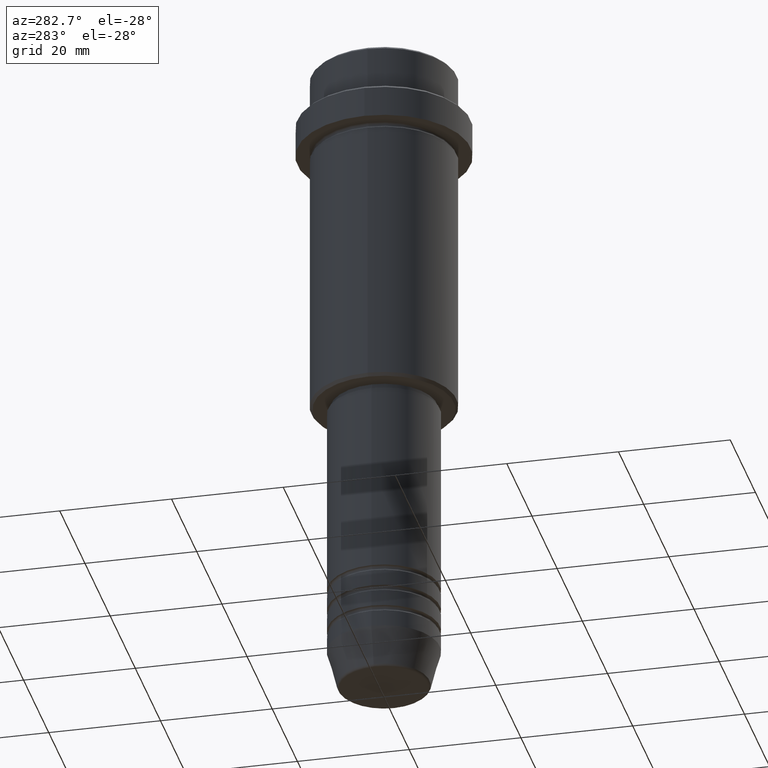
[diagram: clean part render]
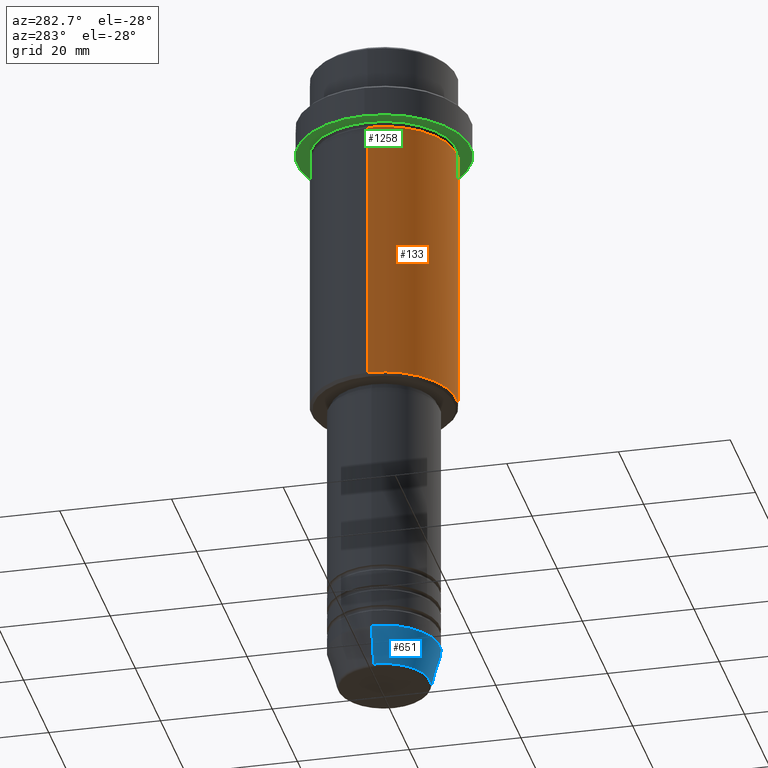
[diagram: same view with three faces highlighted in distinct colors, each labeled with its STEP entity id]
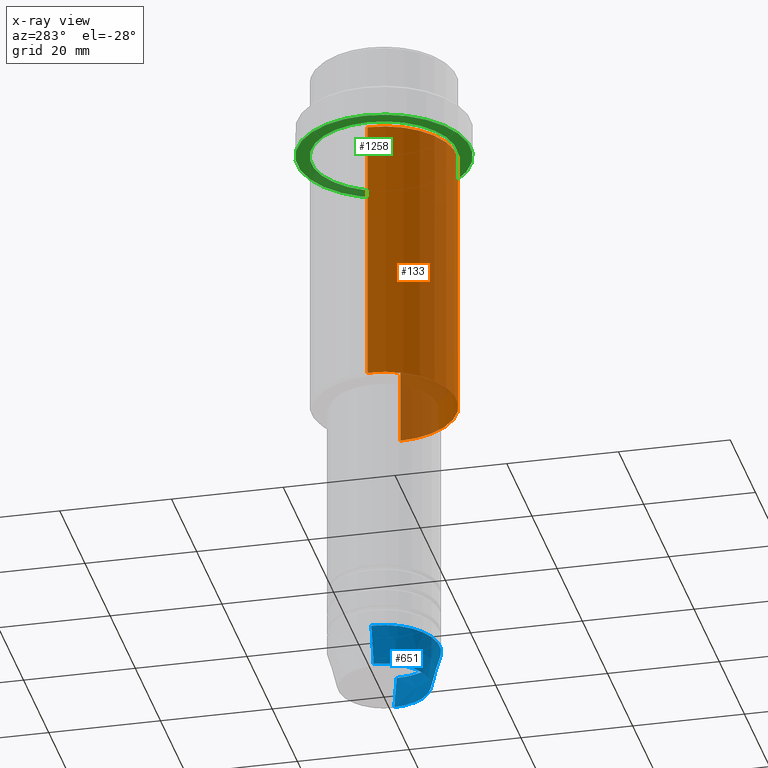
[diagram: x-ray of the same camera — body ghosted, the three highlighted faces saturated]
A machine part, auxiliary view with three faces highlighted in distinct colors.
The next image is the same camera in x-ray (body ghosted, the three faces saturated) — at least one of them is partly hidden behind the body in this view.
Their STEP definitions:

[orange] entity #133 — the highlighted cylindrical surface (partial cylindrical patch) has radius 13 mm, axis along (-0, -0, 1).
#79 = ORIENTED_EDGE ( 'NONE', *, *, #1048, .T. ) ;
#109 = DIRECTION ( 'NONE',  ( -0.000000000000000000, -0.000000000000000000, 1.000000000000000000 ) ) ;
#133 = ADVANCED_FACE ( 'NONE', ( #587 ), #483, .T. ) ;
#136 = CARTESIAN_POINT ( 'NONE',  ( -13.00000000000000000, 1.592040838891559095E-15, -64.50000000000001421 ) ) ;
#141 = ORIENTED_EDGE ( 'NONE', *, *, #871, .T. ) ;
#254 = VECTOR ( 'NONE', #1150, 1000.000000000000000 ) ;
#352 = ORIENTED_EDGE ( 'NONE', *, *, #1129, .F. ) ;
#401 = CARTESIAN_POINT ( 'NONE',  ( -13.00000000000000000, 1.592040838891559095E-15, -16.00000000000000000 ) ) ;
#483 = CYLINDRICAL_SURFACE ( 'NONE', #792, 13.00000000000000000 ) ;
#499 = VERTEX_POINT ( 'NONE', #401 ) ;
#500 = DIRECTION ( 'NONE',  ( -1.000000000000000000, 0.000000000000000000, 0.000000000000000000 ) ) ;
#569 = AXIS2_PLACEMENT_3D ( 'NONE', #1261, #712, #500 ) ;
#570 = LINE ( 'NONE', #782, #679 ) ;
#587 = FACE_OUTER_BOUND ( 'NONE', #1373, .T. ) ;
#598 = CARTESIAN_POINT ( 'NONE',  ( -13.00000000000000000, 1.592040838891559095E-15, 0.000000000000000000 ) ) ;
#649 = DIRECTION ( 'NONE',  ( 1.000000000000000000, 0.000000000000000000, 0.000000000000000000 ) ) ;
#663 = DIRECTION ( 'NONE',  ( 1.000000000000000000, 0.000000000000000000, 0.000000000000000000 ) ) ;
#679 = VECTOR ( 'NONE', #685, 1000.000000000000000 ) ;
#685 = DIRECTION ( 'NONE',  ( -0.000000000000000000, -0.000000000000000000, 1.000000000000000000 ) ) ;
#712 = DIRECTION ( 'NONE',  ( -0.000000000000000000, -0.000000000000000000, 1.000000000000000000 ) ) ;
#782 = CARTESIAN_POINT ( 'NONE',  ( 13.00000000000000000, 0.000000000000000000, 0.000000000000000000 ) ) ;
#792 = AXIS2_PLACEMENT_3D ( 'NONE', #1019, #1361, #663 ) ;
#798 = AXIS2_PLACEMENT_3D ( 'NONE', #1175, #109, #649 ) ;
#848 = VERTEX_POINT ( 'NONE', #136 ) ;
#871 = EDGE_CURVE ( 'NONE', #1286, #1023, #570, .T. ) ;
#950 = CIRCLE ( 'NONE', #569, 13.00000000000000000 ) ;
#1019 = CARTESIAN_POINT ( 'NONE',  ( 0.000000000000000000, 0.000000000000000000, 0.000000000000000000 ) ) ;
#1021 = CIRCLE ( 'NONE', #798, 13.00000000000000000 ) ;
#1023 = VERTEX_POINT ( 'NONE', #1371 ) ;
#1048 = EDGE_CURVE ( 'NONE', #848, #1286, #950, .T. ) ;
#1129 = EDGE_CURVE ( 'NONE', #499, #1023, #1021, .T. ) ;
#1134 = LINE ( 'NONE', #598, #254 ) ;
#1150 = DIRECTION ( 'NONE',  ( -0.000000000000000000, -0.000000000000000000, 1.000000000000000000 ) ) ;
#1175 = CARTESIAN_POINT ( 'NONE',  ( 0.000000000000000000, 0.000000000000000000, -16.00000000000000000 ) ) ;
#1195 = ORIENTED_EDGE ( 'NONE', *, *, #1379, .F. ) ;
#1211 = CARTESIAN_POINT ( 'NONE',  ( 13.00000000000000000, 0.000000000000000000, -64.50000000000001421 ) ) ;
#1261 = CARTESIAN_POINT ( 'NONE',  ( 0.000000000000000000, 0.000000000000000000, -64.50000000000001421 ) ) ;
#1286 = VERTEX_POINT ( 'NONE', #1211 ) ;
#1361 = DIRECTION ( 'NONE',  ( -0.000000000000000000, -0.000000000000000000, 1.000000000000000000 ) ) ;
#1371 = CARTESIAN_POINT ( 'NONE',  ( 13.00000000000000000, 0.000000000000000000, -16.00000000000000000 ) ) ;
#1373 = EDGE_LOOP ( 'NONE', ( #1195, #79, #141, #352 ) ) ;
#1379 = EDGE_CURVE ( 'NONE', #848, #499, #1134, .T. ) ;

[blue] entity #651 — the highlighted conical surface has half-angle 15 deg.
#31 = LINE ( 'NONE', #125, #544 ) ;
#38 = DIRECTION ( 'NONE',  ( 1.000000000000000000, 0.000000000000000000, 0.000000000000000000 ) ) ;
#74 = EDGE_CURVE ( 'NONE', #648, #214, #290, .T. ) ;
#125 = CARTESIAN_POINT ( 'NONE',  ( 10.00000000000000000, 0.000000000000000000, -113.0000000000000000 ) ) ;
#165 = EDGE_CURVE ( 'NONE', #787, #648, #962, .T. ) ;
#201 = AXIS2_PLACEMENT_3D ( 'NONE', #435, #1315, #978 ) ;
#214 = VERTEX_POINT ( 'NONE', #973 ) ;
#290 = CIRCLE ( 'NONE', #1085, 10.00000000000000000 ) ;
#313 = CARTESIAN_POINT ( 'NONE',  ( 8.223655072137194821, 0.000000000000000000, -119.6294095225512564 ) ) ;
#404 = DIRECTION ( 'NONE',  ( -0.000000000000000000, -0.000000000000000000, 1.000000000000000000 ) ) ;
#411 = EDGE_CURVE ( 'NONE', #787, #666, #1149, .T. ) ;
#423 = CARTESIAN_POINT ( 'NONE',  ( -10.00000000000000000, 1.224646799147353256E-15, -113.0000000000000000 ) ) ;
#435 = CARTESIAN_POINT ( 'NONE',  ( 0.000000000000000000, 0.000000000000000000, -113.0000000000000000 ) ) ;
#442 = CARTESIAN_POINT ( 'NONE',  ( -10.00000000000000000, 1.224646799147353256E-15, -113.0000000000000000 ) ) ;
#457 = DIRECTION ( 'NONE',  ( 1.000000000000000000, 0.000000000000000000, 0.000000000000000000 ) ) ;
#544 = VECTOR ( 'NONE', #1234, 1000.000000000000000 ) ;
#591 = CARTESIAN_POINT ( 'NONE',  ( -8.223655072137194821, 1.115877042642912251E-15, -119.6294095225512564 ) ) ;
#632 = CONICAL_SURFACE ( 'NONE', #201, 10.00000000000000000, 0.2617993877991500740 ) ;
#648 = VERTEX_POINT ( 'NONE', #423 ) ;
#651 = ADVANCED_FACE ( 'NONE', ( #740 ), #632, .T. ) ;
#666 = VERTEX_POINT ( 'NONE', #313 ) ;
#716 = VECTOR ( 'NONE', #1405, 1000.000000000000000 ) ;
#740 = FACE_OUTER_BOUND ( 'NONE', #774, .T. ) ;
#742 = ORIENTED_EDGE ( 'NONE', *, *, #1264, .T. ) ;
#774 = EDGE_LOOP ( 'NONE', ( #1401, #987, #742, #946 ) ) ;
#787 = VERTEX_POINT ( 'NONE', #591 ) ;
#946 = ORIENTED_EDGE ( 'NONE', *, *, #74, .F. ) ;
#962 = LINE ( 'NONE', #442, #716 ) ;
#973 = CARTESIAN_POINT ( 'NONE',  ( 10.00000000000000000, 0.000000000000000000, -113.0000000000000000 ) ) ;
#978 = DIRECTION ( 'NONE',  ( 1.000000000000000000, 0.000000000000000000, 0.000000000000000000 ) ) ;
#987 = ORIENTED_EDGE ( 'NONE', *, *, #411, .T. ) ;
#993 = CARTESIAN_POINT ( 'NONE',  ( 0.000000000000000000, 0.000000000000000000, -119.6294095225512564 ) ) ;
#1085 = AXIS2_PLACEMENT_3D ( 'NONE', #1242, #404, #38 ) ;
#1109 = AXIS2_PLACEMENT_3D ( 'NONE', #993, #1239, #457 ) ;
#1149 = CIRCLE ( 'NONE', #1109, 8.223655072137194821 ) ;
#1234 = DIRECTION ( 'NONE',  ( 0.2588190451025213501, 0.000000000000000000, 0.9659258262890680902 ) ) ;
#1239 = DIRECTION ( 'NONE',  ( -0.000000000000000000, -0.000000000000000000, 1.000000000000000000 ) ) ;
#1242 = CARTESIAN_POINT ( 'NONE',  ( 0.000000000000000000, 0.000000000000000000, -113.0000000000000000 ) ) ;
#1264 = EDGE_CURVE ( 'NONE', #666, #214, #31, .T. ) ;
#1315 = DIRECTION ( 'NONE',  ( -0.000000000000000000, -0.000000000000000000, 1.000000000000000000 ) ) ;
#1401 = ORIENTED_EDGE ( 'NONE', *, *, #165, .F. ) ;
#1405 = DIRECTION ( 'NONE',  ( -0.2588190451025213501, 3.169619151431772337E-17, 0.9659258262890680902 ) ) ;

[green] entity #1258 — the highlighted planar face has unit normal (0, 0, -1).
#85 = EDGE_LOOP ( 'NONE', ( #862, #1210 ) ) ;
#113 = CARTESIAN_POINT ( 'NONE',  ( 12.99999999999999645, 1.592040838891558701E-15, -15.00000000000000000 ) ) ;
#135 = CARTESIAN_POINT ( 'NONE',  ( 0.000000000000000000, 15.50000000000000000, -15.00000000000000000 ) ) ;
#140 = EDGE_LOOP ( 'NONE', ( #737, #1295 ) ) ;
#181 = CARTESIAN_POINT ( 'NONE',  ( -12.99999999999999645, 0.000000000000000000, -15.00000000000000000 ) ) ;
#220 = VERTEX_POINT ( 'NONE', #1080 ) ;
#228 = VERTEX_POINT ( 'NONE', #113 ) ;
#263 = DIRECTION ( 'NONE',  ( -0.000000000000000000, -0.000000000000000000, 1.000000000000000000 ) ) ;
#342 = CIRCLE ( 'NONE', #889, 12.99999999999999645 ) ;
#365 = CARTESIAN_POINT ( 'NONE',  ( 0.000000000000000000, 0.000000000000000000, -15.00000000000000000 ) ) ;
#451 = EDGE_CURVE ( 'NONE', #793, #220, #1111, .T. ) ;
#514 = DIRECTION ( 'NONE',  ( -0.000000000000000000, -0.000000000000000000, 1.000000000000000000 ) ) ;
#577 = CARTESIAN_POINT ( 'NONE',  ( -15.50000000000000000, 1.898202538678397557E-15, -15.00000000000000000 ) ) ;
#578 = VERTEX_POINT ( 'NONE', #181 ) ;
#636 = AXIS2_PLACEMENT_3D ( 'NONE', #1036, #1027, #1260 ) ;
#669 = DIRECTION ( 'NONE',  ( -1.000000000000000000, 0.000000000000000000, 0.000000000000000000 ) ) ;
#678 = AXIS2_PLACEMENT_3D ( 'NONE', #1147, #514, #1280 ) ;
#681 = DIRECTION ( 'NONE',  ( 0.000000000000000000, 0.000000000000000000, -1.000000000000000000 ) ) ;
#737 = ORIENTED_EDGE ( 'NONE', *, *, #1121, .T. ) ;
#757 = CARTESIAN_POINT ( 'NONE',  ( 0.000000000000000000, 0.000000000000000000, -15.00000000000000000 ) ) ;
#775 = DIRECTION ( 'NONE',  ( -1.000000000000000000, 0.000000000000000000, -0.000000000000000000 ) ) ;
#793 = VERTEX_POINT ( 'NONE', #577 ) ;
#826 = EDGE_CURVE ( 'NONE', #228, #578, #887, .T. ) ;
#862 = ORIENTED_EDGE ( 'NONE', *, *, #1335, .F. ) ;
#887 = CIRCLE ( 'NONE', #1300, 12.99999999999999645 ) ;
#889 = AXIS2_PLACEMENT_3D ( 'NONE', #757, #1198, #967 ) ;
#910 = CIRCLE ( 'NONE', #636, 15.50000000000000000 ) ;
#967 = DIRECTION ( 'NONE',  ( -1.000000000000000000, 0.000000000000000000, 0.000000000000000000 ) ) ;
#1010 = PLANE ( 'NONE',  #1040 ) ;
#1027 = DIRECTION ( 'NONE',  ( -0.000000000000000000, -0.000000000000000000, 1.000000000000000000 ) ) ;
#1036 = CARTESIAN_POINT ( 'NONE',  ( 0.000000000000000000, 0.000000000000000000, -15.00000000000000000 ) ) ;
#1040 = AXIS2_PLACEMENT_3D ( 'NONE', #135, #681, #775 ) ;
#1080 = CARTESIAN_POINT ( 'NONE',  ( 15.50000000000000000, 0.000000000000000000, -15.00000000000000000 ) ) ;
#1095 = FACE_OUTER_BOUND ( 'NONE', #85, .T. ) ;
#1111 = CIRCLE ( 'NONE', #678, 15.50000000000000000 ) ;
#1121 = EDGE_CURVE ( 'NONE', #578, #228, #342, .T. ) ;
#1147 = CARTESIAN_POINT ( 'NONE',  ( 0.000000000000000000, 0.000000000000000000, -15.00000000000000000 ) ) ;
#1198 = DIRECTION ( 'NONE',  ( -0.000000000000000000, -0.000000000000000000, 1.000000000000000000 ) ) ;
#1210 = ORIENTED_EDGE ( 'NONE', *, *, #451, .F. ) ;
#1217 = FACE_BOUND ( 'NONE', #140, .T. ) ;
#1258 = ADVANCED_FACE ( 'NONE', ( #1217, #1095 ), #1010, .T. ) ;
#1260 = DIRECTION ( 'NONE',  ( 1.000000000000000000, 0.000000000000000000, 0.000000000000000000 ) ) ;
#1280 = DIRECTION ( 'NONE',  ( 1.000000000000000000, 0.000000000000000000, 0.000000000000000000 ) ) ;
#1295 = ORIENTED_EDGE ( 'NONE', *, *, #826, .T. ) ;
#1300 = AXIS2_PLACEMENT_3D ( 'NONE', #365, #263, #669 ) ;
#1335 = EDGE_CURVE ( 'NONE', #220, #793, #910, .T. ) ;